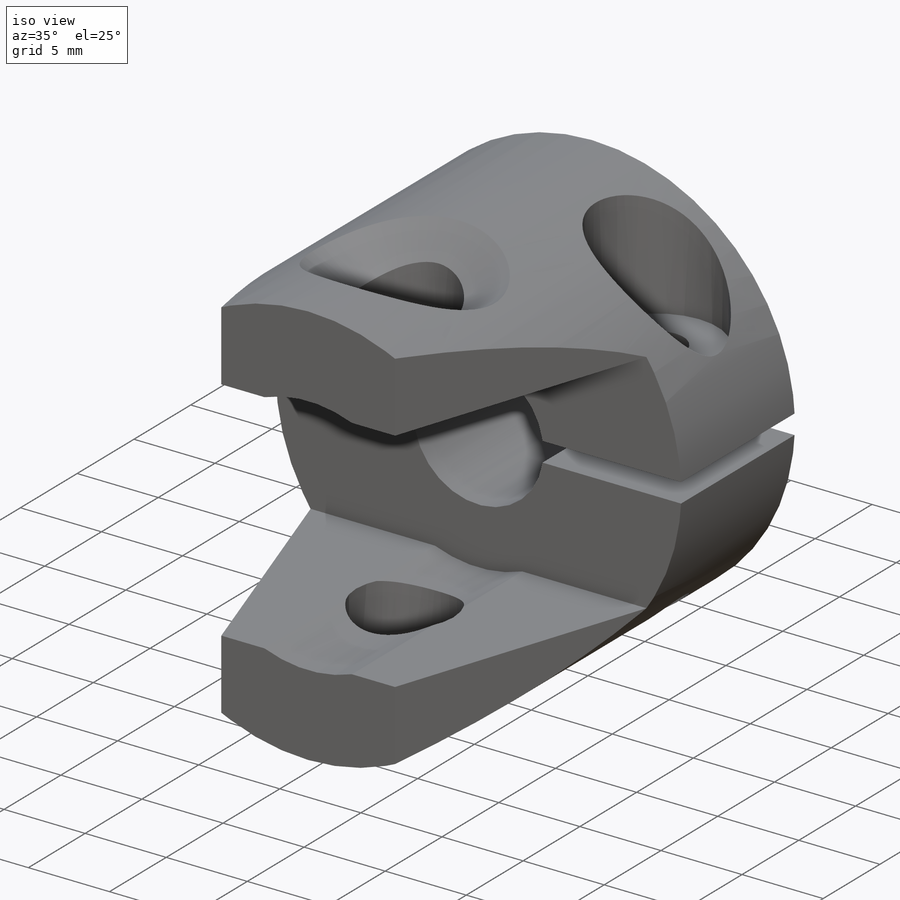
[diagram: iso view]
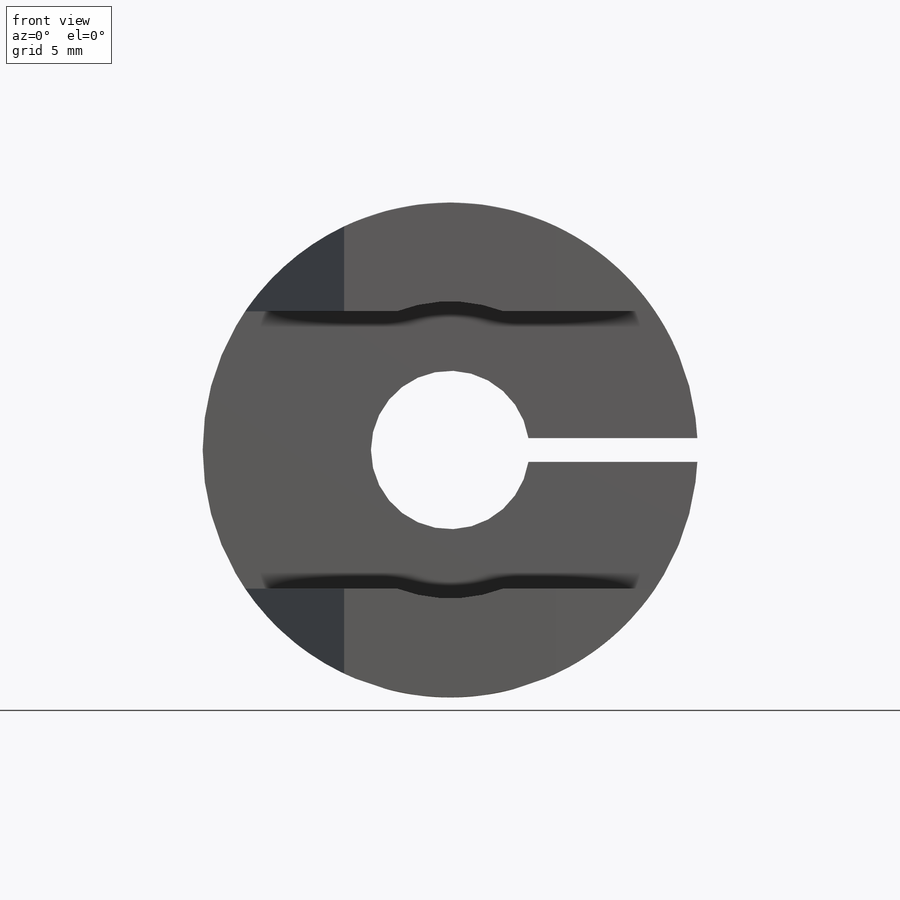
[diagram: front view]
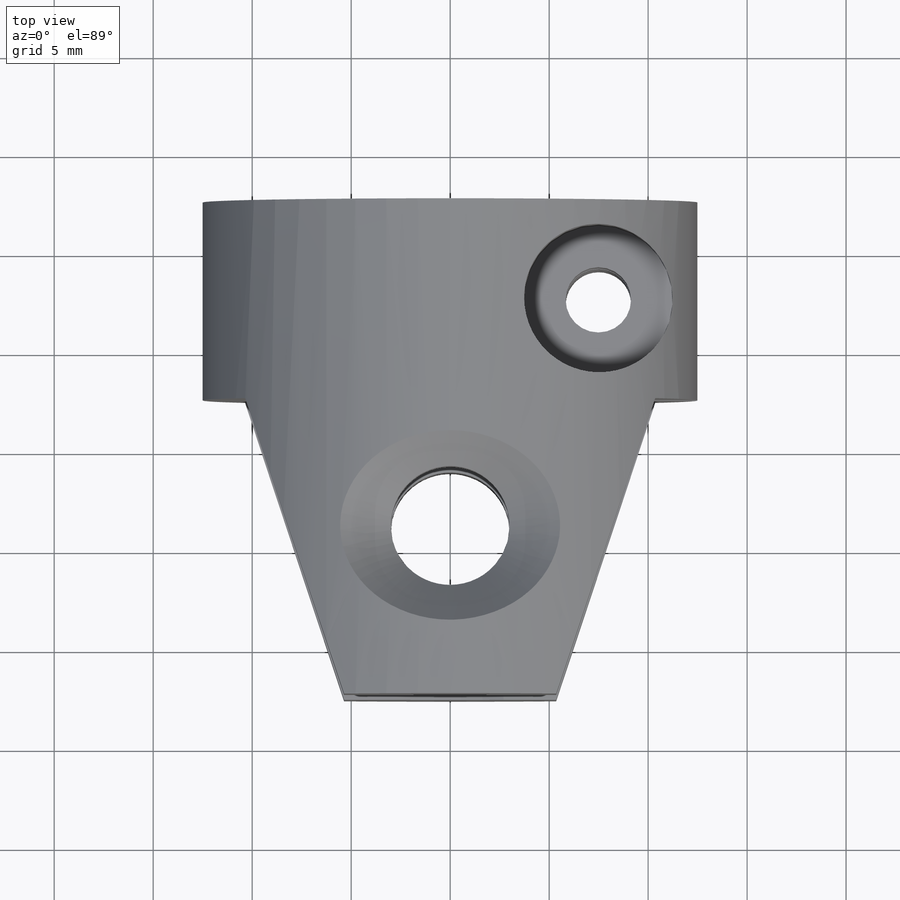
[diagram: top view]
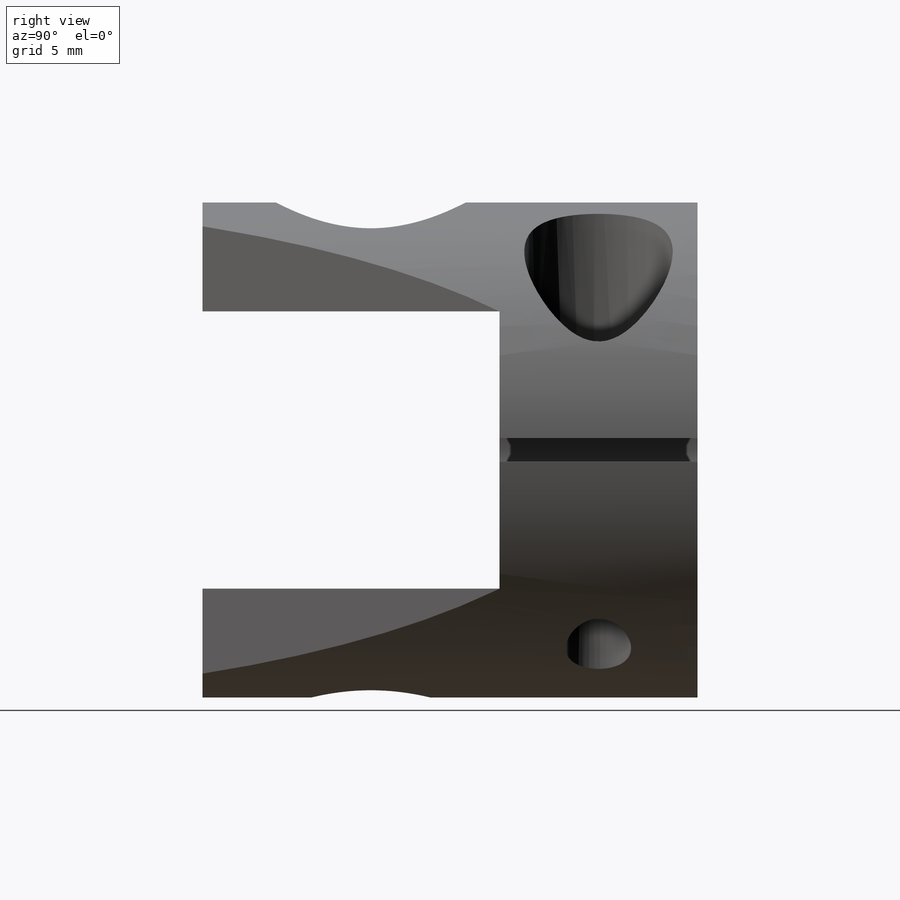
[diagram: right view]
SOLIDWORKS PART (.sldprt)
format: sldprt  version: not decoded by parser v0  size: 635,904 bytes
history: native  units: mm
features: sketch x9, cut_extrude x8, material x1, extrude x1, plane x1, chamfer x1 (+15 scaffold rows collapsed)
feature tree (36):
  scaffold x15  (default folders/planes/origin — collapsed)
  material  "Material <not specified>"
  sketch  "Sketch1"  dims[D1=25.0mm]
  extrude  "Extrude1"  Depth=25mm
  sketch  "Sketch2"  dims[c1.D1=17.0mm c1.D2=15.0mm c1.D3=8.0mm c2.D1=15.0mm c2.D2=14.0mm]
  cut_extrude  "Cut-Extrude1"  Depth=25mm
  sketch  "Sketch3"  dims[D1=8.0mm]
  cut_extrude  "Cut-Extrude2"  Depth=25mm
  sketch  "Sketch4"  dims[D1=15.0mm]
  cut_extrude  "Cut-Extrude3"  Depth=25mm
  sketch  "Sketch5"  dims[D1=6.0mm D2=4.0mm]
  cut_extrude  "Cut-Extrude4"  Depth=25mm
  sketch  "Sketch7"  dims[D1=5.0mm]
  cut_extrude  "Cut-Extrude5"  Depth=25mm
  sketch  "Sketch8"  dims[D1=1.2mm]
  cut_extrude  "Cut-Extrude7"  [1 undecoded]
  plane  "Plane1"  Offset=5mm
  sketch  "Sketch9"  dims[D1=7.5mm D2=5.0mm]
  cut_extrude  "Cut-Extrude8"  Depth=10mm
  sketch  "Sketch10"  dims[D1=3.3mm]
  cut_extrude  "Cut-Extrude9"  [1 undecoded]
  chamfer  "Chamfer1"  Distance=3mm Angle=45deg
decode coverage: 17 of 19 modeling features carry decoded parameters
note: 2 parameter values undecoded
note: suppression state not decoded; provenance and decode notes live in map.json
